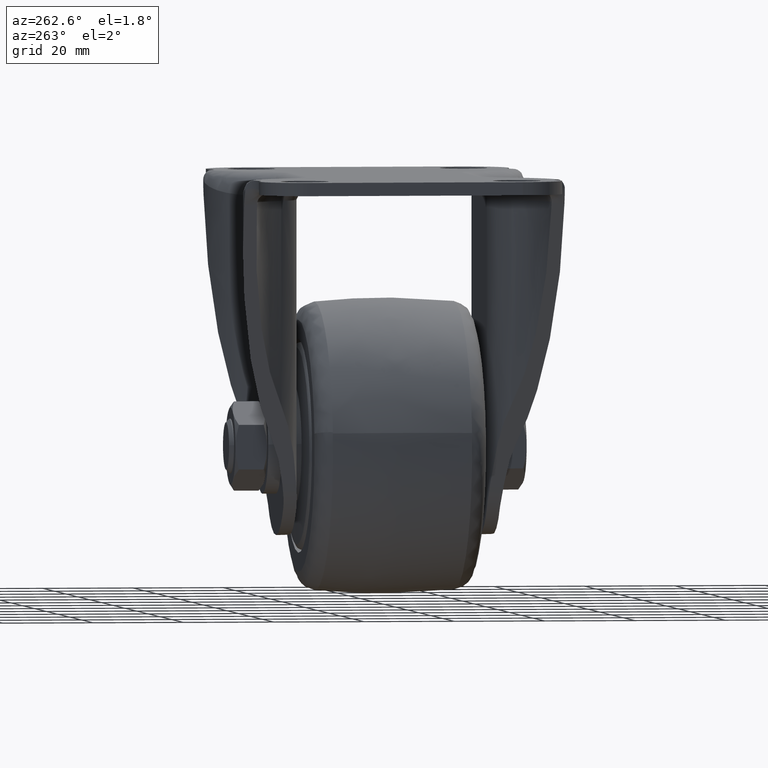
[diagram: clean part render]
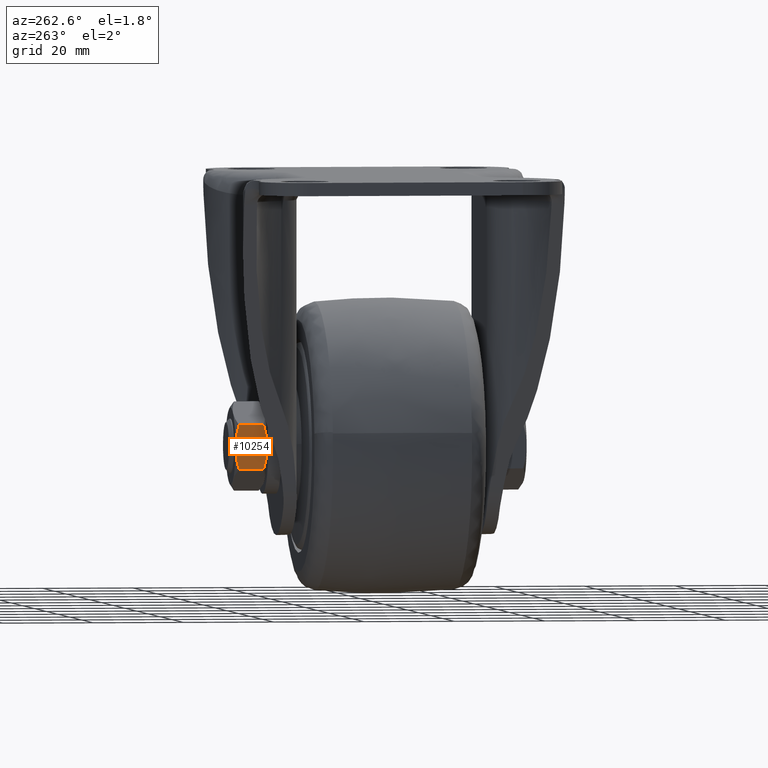
[diagram: same view with one face highlighted and labeled with its STEP entity id]
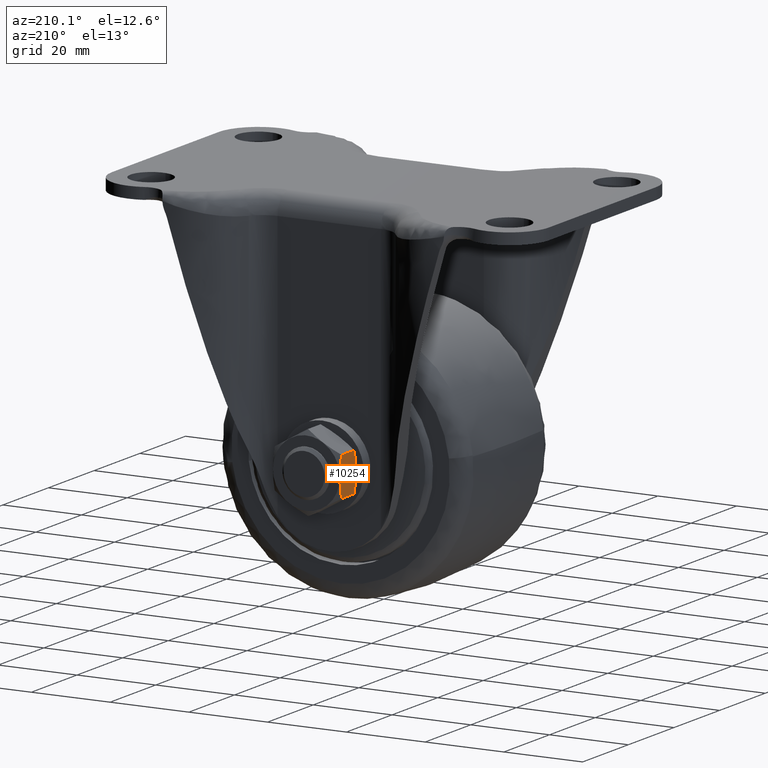
[diagram: same view with one face highlighted and labeled with its STEP entity id]
A machine part, auxiliary view. The second image highlights one B-rep face of the part: STEP entity #10254.
A second angle (auxiliary view) of the same face is appended — the face is thin or edge-on in the first view.
In plain terms, the highlighted face is a freeform B-spline surface patch.
Its self-contained STEP definition (entity closure, byte-faithful):
#9673=CARTESIAN_POINT('',(-8.500000000000000,33.240820142772002,-54.592523000000092));
#9674=VERTEX_POINT('',#9673);
#9690=CARTESIAN_POINT('',(-8.500000000000000,34.0,-59.499966000000100));
#9691=VERTEX_POINT('',#9690);
#9705=CARTESIAN_POINT('',(-8.500000000000000,33.240820142772058,-54.592523000000071));
#9706=CARTESIAN_POINT('',(-8.500000000000002,33.469825540535567,-55.385824731620701));
#9707=CARTESIAN_POINT('',(-8.500000000000000,33.660526078681933,-56.189457515869449));
#9708=CARTESIAN_POINT('',(-8.499999999999998,33.826809048112409,-57.213442334869448));
#9709=CARTESIAN_POINT('',(-8.499999999999998,33.856446746151263,-57.419215336796903));
#9710=CARTESIAN_POINT('',(-8.499999999999998,33.907864689205020,-57.832880543320243));
#9711=CARTESIAN_POINT('',(-8.499999999999998,33.929660930550213,-58.040980791611887));
#9712=CARTESIAN_POINT('',(-8.499999999999998,33.982285542467352,-58.667362743582792));
#9713=CARTESIAN_POINT('',(-8.499999999999998,33.999957355602362,-59.083595274737426));
#9714=CARTESIAN_POINT('',(-8.499999999999998,33.999999974167807,-59.498958934760843));
#9715=CARTESIAN_POINT('',(-8.499999999999998,33.999999999872642,-59.499462468173903));
#9716=CARTESIAN_POINT('',(-8.500000000000000,34.0,-59.499966000000100));
#9717=B_SPLINE_CURVE_WITH_KNOTS('',3,(#9705,#9706,#9707,#9708,#9709,#9710,#9711,#9712,#9713,#9714,#9715,#9716),.UNSPECIFIED.,.F.,.U.,(4,2,2,2,2,4),(0.499848281564014,0.749848281564011,0.812348281564011,0.874848281564012,0.999848281564012,1.0),.UNSPECIFIED.);
#9718=EDGE_CURVE('',#9674,#9691,#9717,.T.);
#9873=CARTESIAN_POINT('',(-8.500000000000000,33.240800224177200,-64.407478000000097));
#9874=VERTEX_POINT('',#9873);
#9875=CARTESIAN_POINT('',(-8.500000000000000,34.0,-59.499966000000100));
#9876=CARTESIAN_POINT('',(-8.499999999999998,33.999999790390198,-59.914319262974082));
#9877=CARTESIAN_POINT('',(-8.499999999999998,33.982421251265677,-60.327304083148157));
#9878=CARTESIAN_POINT('',(-8.499999999999998,33.913810486036922,-61.151172942927253));
#9879=CARTESIAN_POINT('',(-8.499999999999998,33.862762600863853,-61.562055763500588));
#9880=CARTESIAN_POINT('',(-8.499999999999998,33.730657803379863,-62.381485253384007));
#9881=CARTESIAN_POINT('',(-8.499999999999998,33.649629590713687,-62.790034156912171));
#9882=CARTESIAN_POINT('',(-8.500000000000000,33.461905854353468,-63.605133807853470));
#9883=CARTESIAN_POINT('',(-8.500000000000002,33.356067124162450,-64.008184061984252));
#9884=CARTESIAN_POINT('',(-8.500000000000000,33.240800224177271,-64.407478000000125));
#9885=B_SPLINE_CURVE_WITH_KNOTS('',3,(#9875,#9876,#9877,#9878,#9879,#9880,#9881,#9882,#9883,#9884),.UNSPECIFIED.,.F.,.U.,(4,2,2,2,4),(0.0,0.124848281522010,0.249848281522010,0.374848281522011,0.499848281522011),.UNSPECIFIED.);
#9886=EDGE_CURVE('',#9691,#9874,#9885,.T.);
#10154=CARTESIAN_POINT('',(-8.500000000000000,27.759179857228201,-54.592523000000092));
#10155=VERTEX_POINT('',#10154);
#10199=CARTESIAN_POINT('',(-8.500000000000000,33.240820142772002,-54.592523000000092));
#10200=CARTESIAN_POINT('',(-8.500000000000000,27.759179857228201,-54.592523000000092));
#10201=QUASI_UNIFORM_CURVE('',1,(#10199,#10200),.UNSPECIFIED.,.F.,.U.);
#10202=EDGE_CURVE('',#9674,#10155,#10201,.T.);
#10207=CARTESIAN_POINT('',(-8.500000000000000,26.650350013567358,-54.102264542600970));
#10208=CARTESIAN_POINT('',(-8.500000000000000,26.650350013567358,-64.897735316616249));
#10209=CARTESIAN_POINT('',(-8.500000000000000,34.349650174187282,-54.102264542600970));
#10210=CARTESIAN_POINT('',(-8.500000000000000,34.349650174187282,-64.897735316616249));
#10211=B_SPLINE_SURFACE_WITH_KNOTS('',1,1,((#10207,#10209),(#10208,#10210)),.UNSPECIFIED.,.F.,.F.,.U.,(2,2),(2,2),(0.0,10.795470774015280),(0.0,7.699300160619917),.UNSPECIFIED.);
#10212=CARTESIAN_POINT('',(-8.500000000000000,27.759199775822999,-64.407478000000097));
#10213=VERTEX_POINT('',#10212);
#10214=CARTESIAN_POINT('',(-8.500000000000000,27.0,-59.499966000000100));
#10215=VERTEX_POINT('',#10214);
#10216=CARTESIAN_POINT('',(-8.500000000000000,27.759199775822989,-64.407478000000111));
#10217=CARTESIAN_POINT('',(-8.500000000000002,27.643932875837820,-64.008184061984267));
#10218=CARTESIAN_POINT('',(-8.499999999999998,27.538094145646781,-63.605133807853463));
#10219=CARTESIAN_POINT('',(-8.499999999999998,27.350370409286551,-62.790034156912192));
#10220=CARTESIAN_POINT('',(-8.500000000000000,27.269342196620389,-62.381485253384007));
#10221=CARTESIAN_POINT('',(-8.499999999999998,27.137237399136399,-61.562055763500588));
#10222=CARTESIAN_POINT('',(-8.500000000000000,27.086189513963340,-61.151172942927232));
#10223=CARTESIAN_POINT('',(-8.499999999999998,27.017578748734561,-60.327304083148171));
#10224=CARTESIAN_POINT('',(-8.500000000000000,27.000000209610050,-59.914319262974097));
#10225=CARTESIAN_POINT('',(-8.500000000000000,27.0,-59.499966000000100));
#10226=B_SPLINE_CURVE_WITH_KNOTS('',3,(#10216,#10217,#10218,#10219,#10220,#10221,#10222,#10223,#10224,#10225),.UNSPECIFIED.,.F.,.U.,(4,2,2,2,4),(0.0,0.125000000000000,0.249999999999999,0.374999999999999,0.499848281522009),.UNSPECIFIED.);
#10227=EDGE_CURVE('',#10213,#10215,#10226,.T.);
#10228=ORIENTED_EDGE('',*,*,#10227,.T.);
#10229=CARTESIAN_POINT('',(-8.500000000000000,27.0,-59.499966000000100));
#10230=CARTESIAN_POINT('',(-8.500000000000000,27.000000000127621,-59.499462468173903));
#10231=CARTESIAN_POINT('',(-8.500000000000000,27.000000025832449,-59.498958934760850));
#10232=CARTESIAN_POINT('',(-8.499999999999998,27.000042644397890,-59.083595274737448));
#10233=CARTESIAN_POINT('',(-8.500000000000000,27.017714457532911,-58.667362743582800));
#10234=CARTESIAN_POINT('',(-8.500000000000000,27.070339069450029,-58.040980791611901));
#10235=CARTESIAN_POINT('',(-8.500000000000000,27.092135310795239,-57.832880543320272));
#10236=CARTESIAN_POINT('',(-8.500000000000000,27.143553253848982,-57.419215336796917));
#10237=CARTESIAN_POINT('',(-8.500000000000000,27.173190951887840,-57.213442334869470));
#10238=CARTESIAN_POINT('',(-8.499999999999998,27.339473921318330,-56.189457515869456));
#10239=CARTESIAN_POINT('',(-8.499999999999998,27.530174459464678,-55.385824731620708));
#10240=CARTESIAN_POINT('',(-8.500000000000000,27.759179857228201,-54.592523000000092));
#10241=B_SPLINE_CURVE_WITH_KNOTS('',3,(#10229,#10230,#10231,#10232,#10233,#10234,#10235,#10236,#10237,#10238,#10239,#10240),.UNSPECIFIED.,.F.,.U.,(4,2,2,2,2,4),(0.499848281564011,0.499999999999998,0.624999999999998,0.687499999999997,0.749999999999997,1.0),.UNSPECIFIED.);
#10242=EDGE_CURVE('',#10215,#10155,#10241,.T.);
#10243=ORIENTED_EDGE('',*,*,#10242,.T.);
#10244=ORIENTED_EDGE('',*,*,#10202,.F.);
#10245=ORIENTED_EDGE('',*,*,#9718,.T.);
#10246=ORIENTED_EDGE('',*,*,#9886,.T.);
#10247=CARTESIAN_POINT('',(-8.500000000000000,33.240800224177200,-64.407478000000097));
#10248=CARTESIAN_POINT('',(-8.500000000000000,27.759199775822999,-64.407478000000097));
#10249=QUASI_UNIFORM_CURVE('',1,(#10247,#10248),.UNSPECIFIED.,.F.,.U.);
#10250=EDGE_CURVE('',#9874,#10213,#10249,.T.);
#10251=ORIENTED_EDGE('',*,*,#10250,.T.);
#10252=EDGE_LOOP('',(#10228,#10243,#10244,#10245,#10246,#10251));
#10253=FACE_OUTER_BOUND('',#10252,.T.);
#10254=ADVANCED_FACE('',(#10253),#10211,.F.);